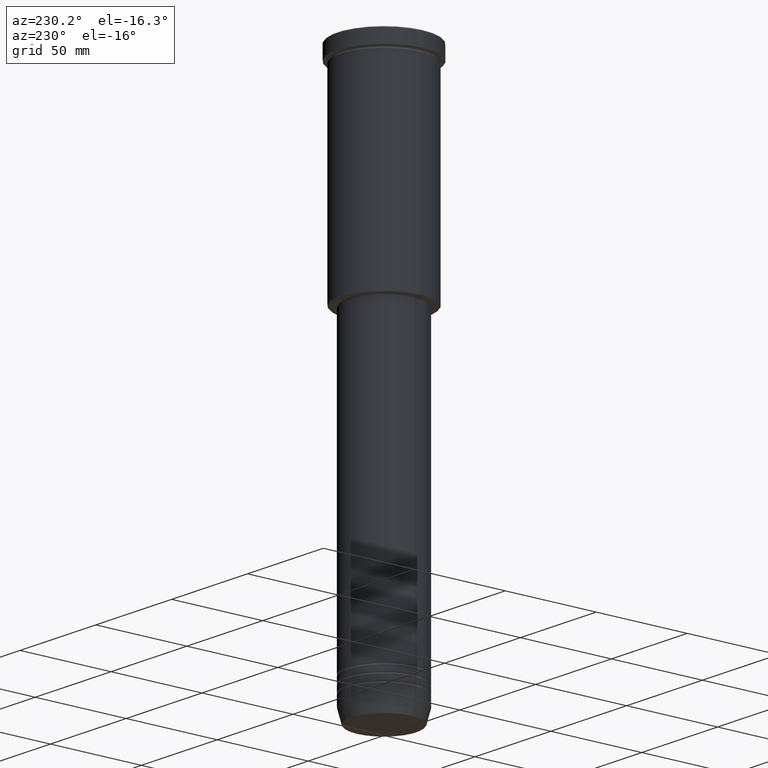
[diagram: clean part render]
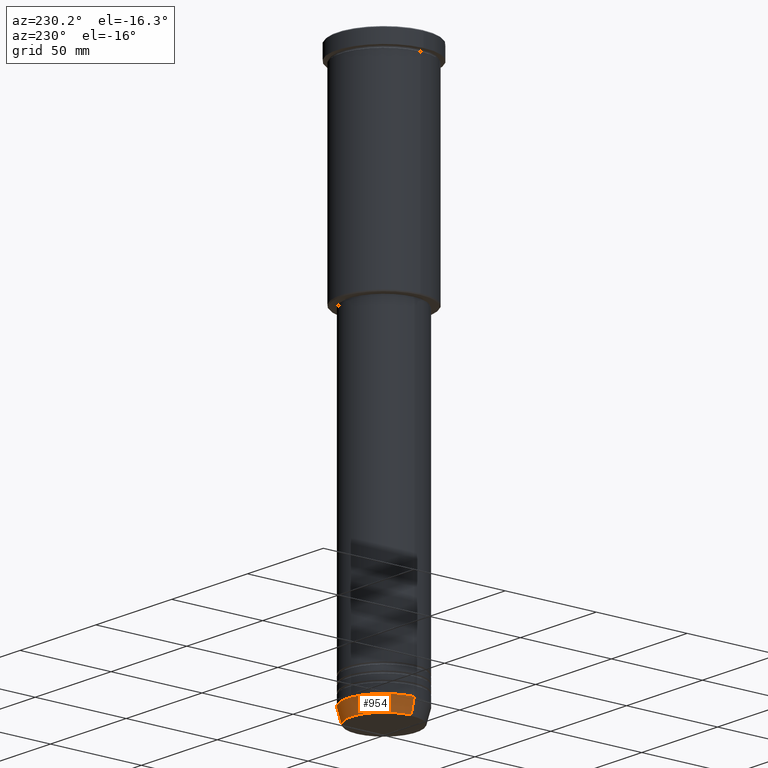
[diagram: same view with one face highlighted and labeled with its STEP entity id]
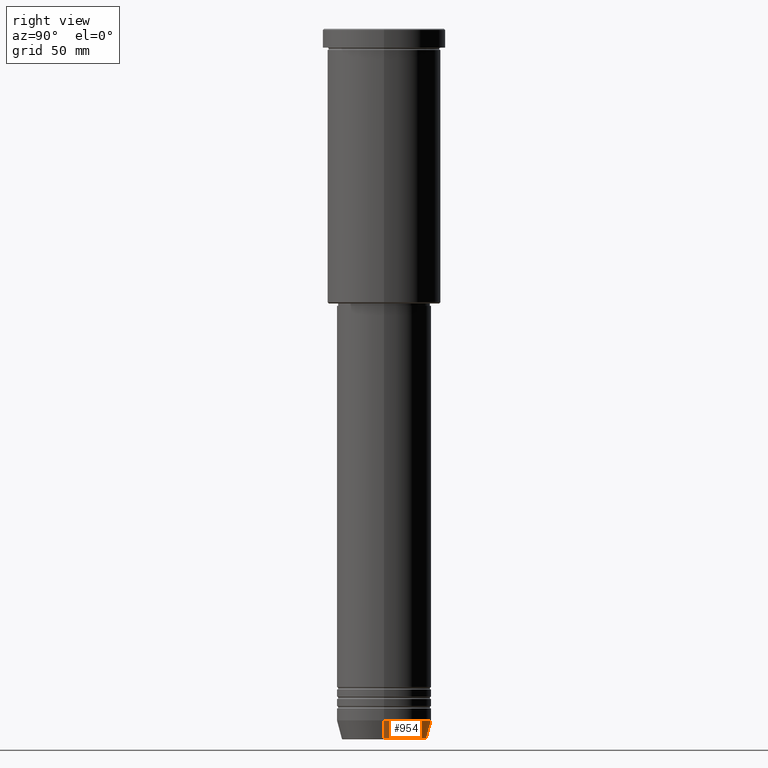
[diagram: same view with one face highlighted and labeled with its STEP entity id]
A machine part, auxiliary view. The second image highlights one B-rep face of the part: STEP entity #954.
A second angle (right view) of the same face is appended — the face is thin or edge-on in the first view.
In plain terms, the highlighted conical surface has half-angle 15 deg.
Its self-contained STEP definition (entity closure, byte-faithful):
#2 = CARTESIAN_POINT ( 'NONE',  ( -20.00000000000000355, 2.449293598294706907E-15, -292.0000000000000000 ) ) ;
#20 = DIRECTION ( 'NONE',  ( -0.000000000000000000, -0.000000000000000000, 1.000000000000000000 ) ) ;
#27 = DIRECTION ( 'NONE',  ( -0.2588190451025212391, 3.169619151431771721E-17, 0.9659258262890680902 ) ) ;
#37 = VECTOR ( 'NONE', #465, 1000.000000000000114 ) ;
#85 = CARTESIAN_POINT ( 'NONE',  ( 0.000000000000000000, 0.000000000000000000, -299.6294095225512137 ) ) ;
#95 = EDGE_CURVE ( 'NONE', #1124, #388, #347, .T. ) ;
#128 = CIRCLE ( 'NONE', #678, 20.00000000000000355 ) ;
#167 = LINE ( 'NONE', #1176, #901 ) ;
#251 = ORIENTED_EDGE ( 'NONE', *, *, #898, .T. ) ;
#321 = ORIENTED_EDGE ( 'NONE', *, *, #729, .T. ) ;
#333 = DIRECTION ( 'NONE',  ( 1.000000000000000000, 0.000000000000000000, 0.000000000000000000 ) ) ;
#347 = LINE ( 'NONE', #654, #37 ) ;
#372 = DIRECTION ( 'NONE',  ( 1.000000000000000000, 0.000000000000000000, 0.000000000000000000 ) ) ;
#388 = VERTEX_POINT ( 'NONE', #429 ) ;
#402 = VERTEX_POINT ( 'NONE', #884 ) ;
#429 = CARTESIAN_POINT ( 'NONE',  ( 20.00000000000000355, 0.000000000000000000, -292.0000000000000000 ) ) ;
#465 = DIRECTION ( 'NONE',  ( 0.2588190451025212391, 0.000000000000000000, 0.9659258262890680902 ) ) ;
#503 = AXIS2_PLACEMENT_3D ( 'NONE', #85, #20, #372 ) ;
#554 = CONICAL_SURFACE ( 'NONE', #772, 20.00000000000000355, 0.2617993877991499629 ) ;
#592 = CARTESIAN_POINT ( 'NONE',  ( 17.95570587970608045, 0.000000000000000000, -299.6294095225512137 ) ) ;
#654 = CARTESIAN_POINT ( 'NONE',  ( 20.00000000000000355, 0.000000000000000000, -292.0000000000000000 ) ) ;
#678 = AXIS2_PLACEMENT_3D ( 'NONE', #1159, #894, #333 ) ;
#729 = EDGE_CURVE ( 'NONE', #402, #973, #167, .T. ) ;
#735 = FACE_OUTER_BOUND ( 'NONE', #820, .T. ) ;
#772 = AXIS2_PLACEMENT_3D ( 'NONE', #915, #1101, #1001 ) ;
#814 = EDGE_CURVE ( 'NONE', #388, #973, #128, .T. ) ;
#820 = EDGE_LOOP ( 'NONE', ( #251, #321, #1100, #869 ) ) ;
#869 = ORIENTED_EDGE ( 'NONE', *, *, #95, .F. ) ;
#884 = CARTESIAN_POINT ( 'NONE',  ( -17.95570587970608045, 2.324116685748021371E-15, -299.6294095225512137 ) ) ;
#894 = DIRECTION ( 'NONE',  ( -0.000000000000000000, -0.000000000000000000, 1.000000000000000000 ) ) ;
#898 = EDGE_CURVE ( 'NONE', #1124, #402, #1017, .T. ) ;
#901 = VECTOR ( 'NONE', #27, 1000.000000000000114 ) ;
#915 = CARTESIAN_POINT ( 'NONE',  ( 0.000000000000000000, 0.000000000000000000, -292.0000000000000000 ) ) ;
#954 = ADVANCED_FACE ( 'NONE', ( #735 ), #554, .T. ) ;
#973 = VERTEX_POINT ( 'NONE', #2 ) ;
#1001 = DIRECTION ( 'NONE',  ( 1.000000000000000000, 0.000000000000000000, 0.000000000000000000 ) ) ;
#1017 = CIRCLE ( 'NONE', #503, 17.95570587970608045 ) ;
#1100 = ORIENTED_EDGE ( 'NONE', *, *, #814, .F. ) ;
#1101 = DIRECTION ( 'NONE',  ( -0.000000000000000000, -0.000000000000000000, 1.000000000000000000 ) ) ;
#1124 = VERTEX_POINT ( 'NONE', #592 ) ;
#1159 = CARTESIAN_POINT ( 'NONE',  ( 0.000000000000000000, 0.000000000000000000, -292.0000000000000000 ) ) ;
#1176 = CARTESIAN_POINT ( 'NONE',  ( -20.00000000000000355, 2.449293598294706907E-15, -292.0000000000000000 ) ) ;